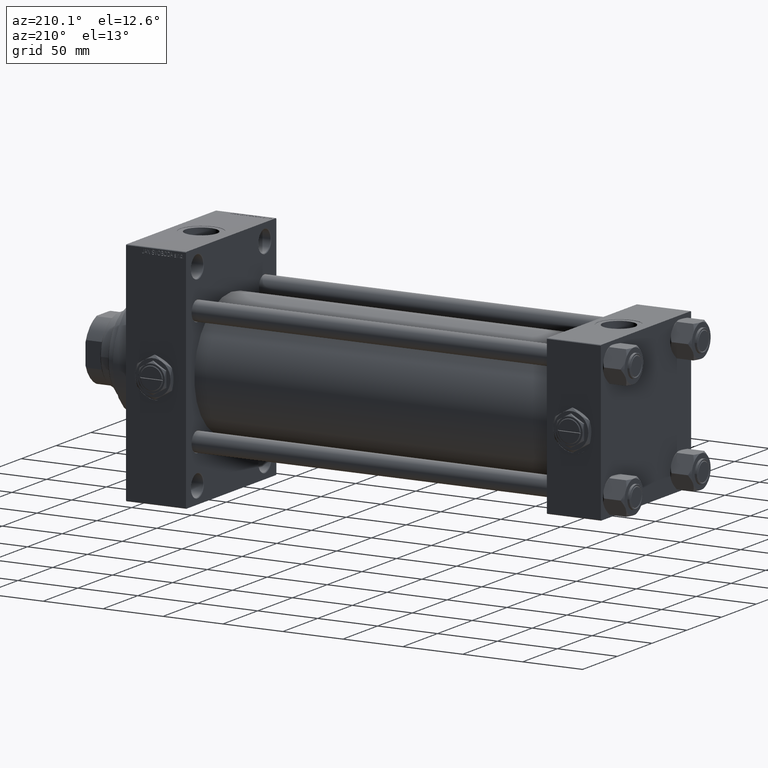
[diagram: clean part render]
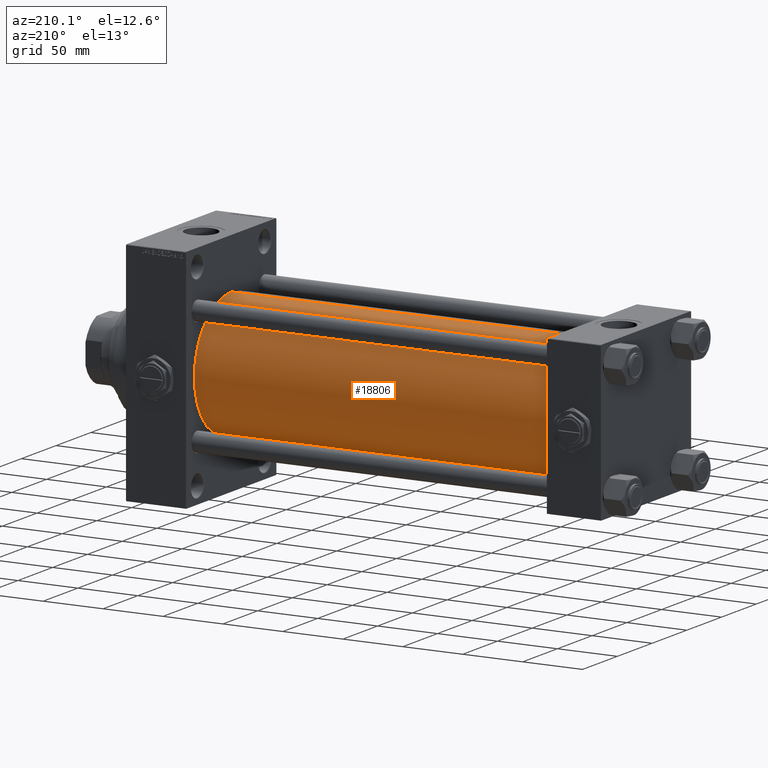
[diagram: same view with one face highlighted and labeled with its STEP entity id]
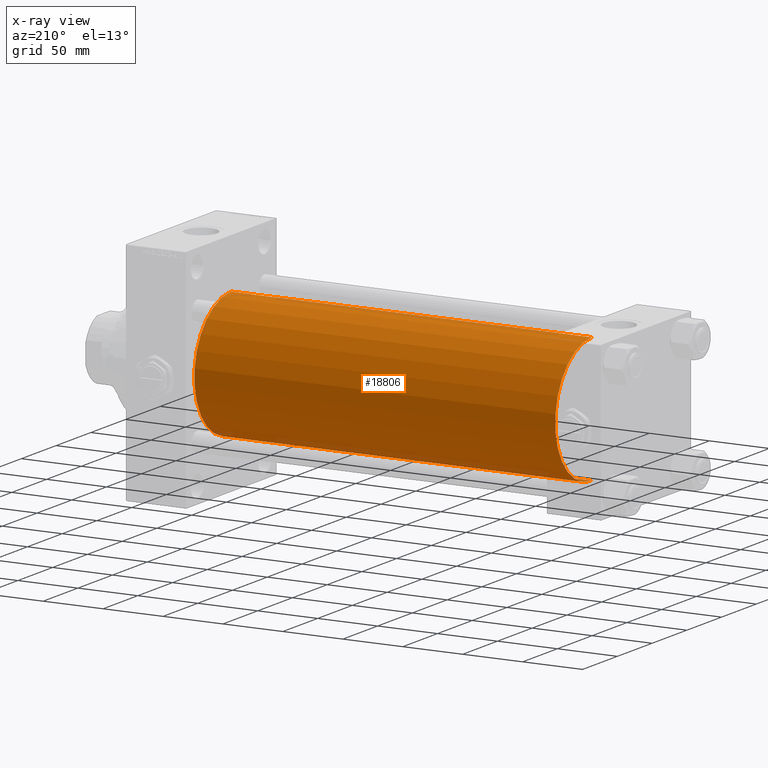
[diagram: x-ray of the same camera — body ghosted, the highlighted face saturated]
A machine part, auxiliary view. The second image highlights one B-rep face of the part: STEP entity #18806.
The next image is the same camera in x-ray: the body ghosted, the highlighted face saturated — about 0% of this face is hidden behind the body in this view.
In plain terms, the highlighted cylindrical surface (partial cylindrical patch) has radius 53 mm, axis along (-1, -0, -0).
Its self-contained STEP definition (entity closure, byte-faithful):
#454 = CARTESIAN_POINT ( 'NONE',  ( 44.99999999999998579, -2.602085213965210642E-15, 53.00000000000000711 ) ) ;
#784 = CIRCLE ( 'NONE', #11271, 53.00000000000000711 ) ;
#2158 = DIRECTION ( 'NONE',  ( 1.000000000000000000, 0.000000000000000000, 0.000000000000000000 ) ) ;
#3684 = ORIENTED_EDGE ( 'NONE', *, *, #47772, .T. ) ;
#5003 = EDGE_CURVE ( 'NONE', #6095, #47682, #784, .T. ) ;
#6095 = VERTEX_POINT ( 'NONE', #44090 ) ;
#6195 = DIRECTION ( 'NONE',  ( 0.000000000000000000, 0.000000000000000000, -1.000000000000000000 ) ) ;
#11271 = AXIS2_PLACEMENT_3D ( 'NONE', #25627, #2158, #6195 ) ;
#12676 = ORIENTED_EDGE ( 'NONE', *, *, #21666, .F. ) ;
#12860 = ORIENTED_EDGE ( 'NONE', *, *, #5003, .F. ) ;
#14316 = ORIENTED_EDGE ( 'NONE', *, *, #32959, .T. ) ;
#16714 = VERTEX_POINT ( 'NONE', #454 ) ;
#18806 = ADVANCED_FACE ( 'NONE', ( #30989 ), #28653, .T. ) ;
#19230 = DIRECTION ( 'NONE',  ( 0.000000000000000000, 0.000000000000000000, 1.000000000000000000 ) ) ;
#19716 = DIRECTION ( 'NONE',  ( -1.000000000000000000, -0.000000000000000000, -0.000000000000000000 ) ) ;
#20114 = LINE ( 'NONE', #39741, #40031 ) ;
#20213 = CARTESIAN_POINT ( 'NONE',  ( 346.0000000000000000, -2.602085213965210642E-15, 53.00000000000000711 ) ) ;
#20603 = EDGE_LOOP ( 'NONE', ( #12860, #14316, #3684, #12676 ) ) ;
#21666 = EDGE_CURVE ( 'NONE', #47682, #16714, #39109, .T. ) ;
#22432 = CARTESIAN_POINT ( 'NONE',  ( 44.99999999999998579, 3.888542821515762466E-15, -53.00000000000000711 ) ) ;
#24626 = CARTESIAN_POINT ( 'NONE',  ( 346.0000000000000000, -2.602085213965210642E-15, 0.000000000000000000 ) ) ;
#24833 = AXIS2_PLACEMENT_3D ( 'NONE', #38374, #42163, #19230 ) ;
#25627 = CARTESIAN_POINT ( 'NONE',  ( 346.0000000000000000, -2.602085213965210642E-15, 0.000000000000000000 ) ) ;
#27539 = VERTEX_POINT ( 'NONE', #22432 ) ;
#28653 = CYLINDRICAL_SURFACE ( 'NONE', #42972, 53.00000000000000711 ) ;
#30989 = FACE_OUTER_BOUND ( 'NONE', #20603, .T. ) ;
#32959 = EDGE_CURVE ( 'NONE', #6095, #27539, #20114, .T. ) ;
#36467 = DIRECTION ( 'NONE',  ( -1.000000000000000000, -0.000000000000000000, -0.000000000000000000 ) ) ;
#37332 = VECTOR ( 'NONE', #19716, 1000.000000000000000 ) ;
#38374 = CARTESIAN_POINT ( 'NONE',  ( 44.99999999999998579, -2.602085213965210642E-15, 0.000000000000000000 ) ) ;
#39109 = LINE ( 'NONE', #20213, #37332 ) ;
#39741 = CARTESIAN_POINT ( 'NONE',  ( 346.0000000000000000, 3.888542821515762466E-15, -53.00000000000000711 ) ) ;
#40031 = VECTOR ( 'NONE', #36467, 1000.000000000000000 ) ;
#42163 = DIRECTION ( 'NONE',  ( 1.000000000000000000, -0.000000000000000000, 0.000000000000000000 ) ) ;
#42972 = AXIS2_PLACEMENT_3D ( 'NONE', #24626, #46405, #46661 ) ;
#44090 = CARTESIAN_POINT ( 'NONE',  ( 346.0000000000000000, 3.888542821515762466E-15, -53.00000000000000711 ) ) ;
#46405 = DIRECTION ( 'NONE',  ( -1.000000000000000000, -0.000000000000000000, -0.000000000000000000 ) ) ;
#46588 = CIRCLE ( 'NONE', #24833, 53.00000000000000711 ) ;
#46661 = DIRECTION ( 'NONE',  ( 0.000000000000000000, 0.000000000000000000, 1.000000000000000000 ) ) ;
#46714 = CARTESIAN_POINT ( 'NONE',  ( 346.0000000000000000, -2.602085213965210642E-15, 53.00000000000000711 ) ) ;
#47682 = VERTEX_POINT ( 'NONE', #46714 ) ;
#47772 = EDGE_CURVE ( 'NONE', #27539, #16714, #46588, .T. ) ;